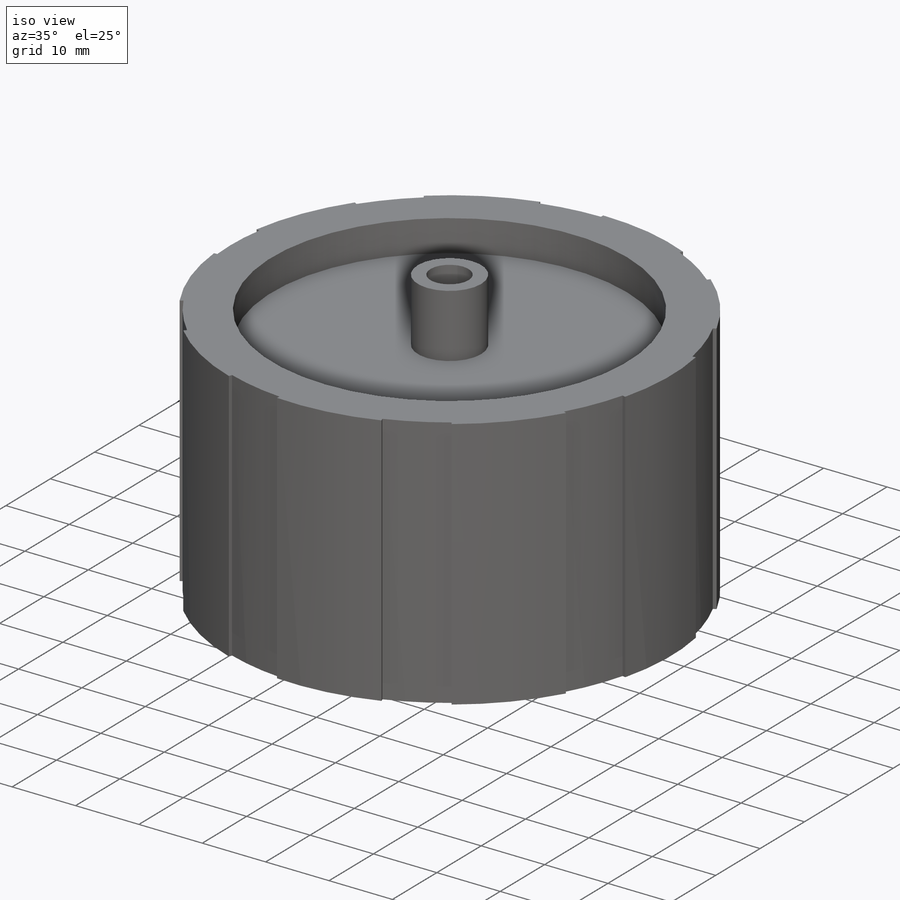
[diagram: iso view]
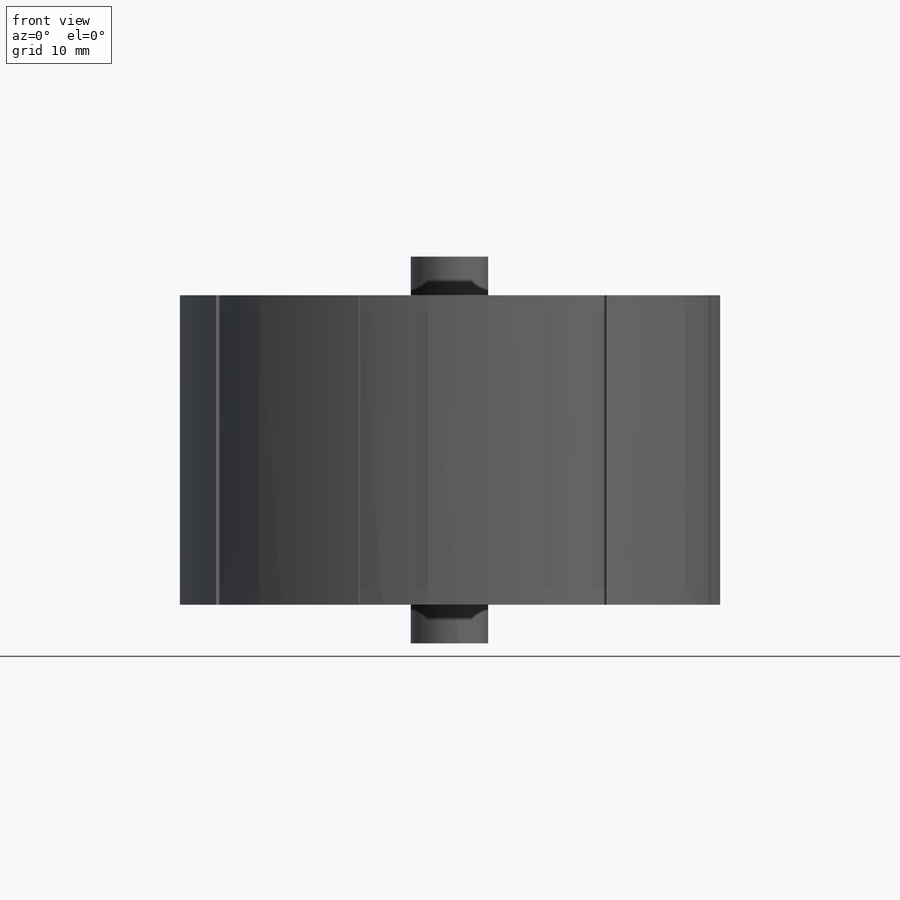
[diagram: front view]
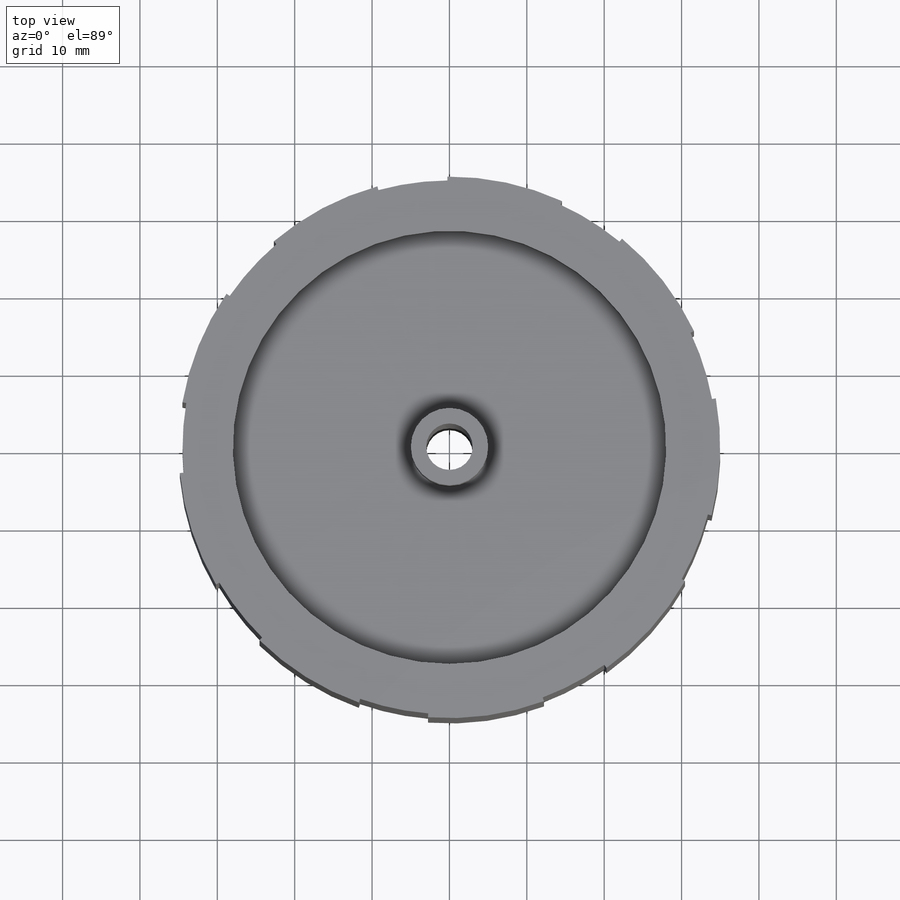
[diagram: top view]
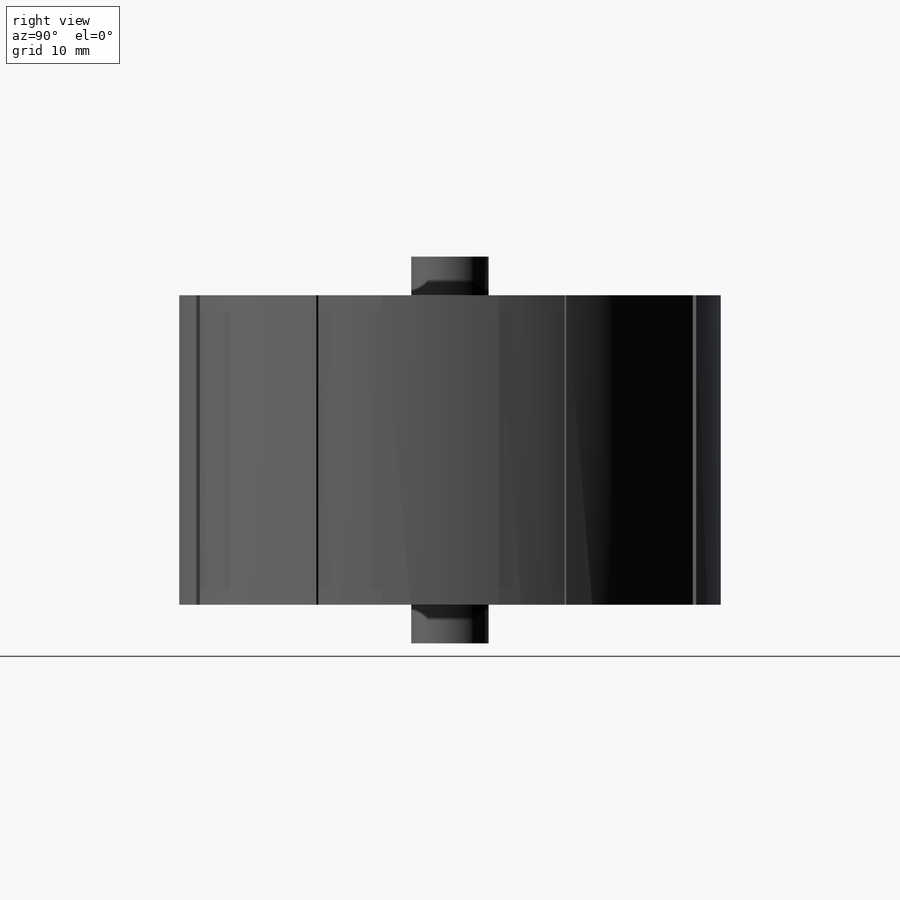
[diagram: right view]
SOLIDWORKS PART (.sldprt)
format: sldprt  version: not decoded by parser v0  size: 223,744 bytes
history: native  units: mm
features: sketch x6, extrude x3, cut_extrude x3, material x1 (+12 scaffold rows collapsed)
feature tree (25):
  scaffold x12  (default folders/planes/origin — collapsed)
  material  "Material <not specified>"
  sketch  "Sketch1"  dims[c1.D1=~62.121171mm c1.D2=~33.738168mm c2.D1=~33.737183mm c3.D1=15.0deg c3.D2=9.0]
  extrude  "Boss-Extrude1"  Depth=40mm
  sketch  "Sketch2"  dims[D1=~27.891934mm]
  cut_extrude  "Cut-Extrude1"  Depth=5mm
  sketch  "Sketch3"  dims[D1=~26.239579mm]
  cut_extrude  "Cut-Extrude2"  Depth=5mm
  sketch  "Sketch4"  dims[D1=~5.781637mm]
  extrude  "Boss-Extrude2"  Depth=10mm
  sketch  "Sketch5"  dims[D1=~5.147984mm]
  extrude  "Boss-Extrude3"  Depth=10mm
  sketch  "Sketch6"  dims[D1=~2.975459mm]
  cut_extrude  "Cut-Extrude3"  [1 undecoded]
decode coverage: 11 of 12 modeling features carry decoded parameters
note: ~ marks probable driven/reference dimensions
note: 1 parameter value undecoded
note: suppression state not decoded; provenance and decode notes live in map.json
